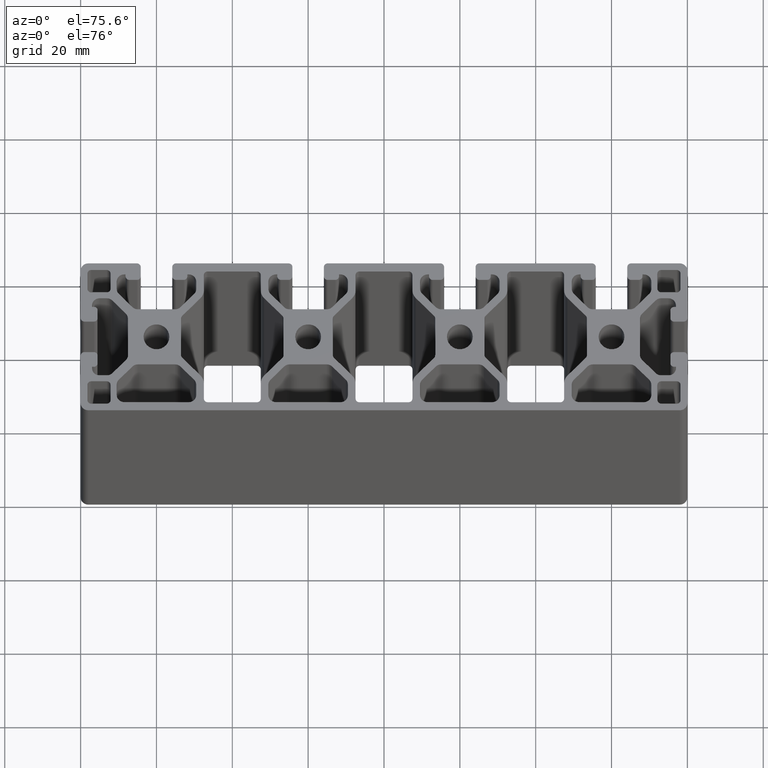
[diagram: clean part render]
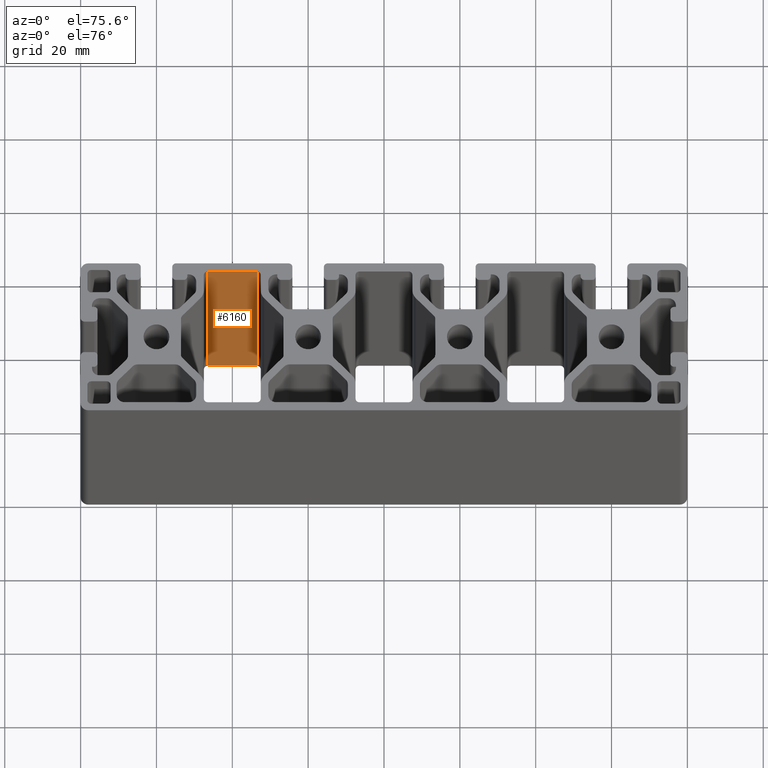
[diagram: same view with one face highlighted and labeled with its STEP entity id]
A machine part, auxiliary view. The second image highlights one B-rep face of the part: STEP entity #6160.
In plain terms, the highlighted planar face has unit normal (0, 1, 0).
Its self-contained STEP definition (entity closure, byte-faithful):
#50=PLANE('',#6488);
#218=FACE_OUTER_BOUND('',#540,.T.);
#540=EDGE_LOOP('',(#4101,#4102,#4103,#4104));
#898=LINE('',#9049,#1542);
#899=LINE('',#9053,#1543);
#900=LINE('',#9055,#1544);
#901=LINE('',#9056,#1545);
#1542=VECTOR('',#7134,100.);
#1543=VECTOR('',#7139,13.);
#1544=VECTOR('',#7140,100.);
#1545=VECTOR('',#7141,13.);
#2499=VERTEX_POINT('',#9046);
#2500=VERTEX_POINT('',#9048);
#2501=VERTEX_POINT('',#9052);
#2502=VERTEX_POINT('',#9054);
#3141=EDGE_CURVE('',#2499,#2500,#898,.T.);
#3143=EDGE_CURVE('',#2501,#2499,#899,.T.);
#3144=EDGE_CURVE('',#2501,#2502,#900,.T.);
#3145=EDGE_CURVE('',#2500,#2502,#901,.T.);
#4101=ORIENTED_EDGE('',*,*,#3143,.F.);
#4102=ORIENTED_EDGE('',*,*,#3144,.T.);
#4103=ORIENTED_EDGE('',*,*,#3145,.F.);
#4104=ORIENTED_EDGE('',*,*,#3141,.F.);
#6160=ADVANCED_FACE('',(#218),#50,.F.);
#6488=AXIS2_PLACEMENT_3D('',#9051,#7137,#7138);
#7134=DIRECTION('',(0.,0.,1.));
#7137=DIRECTION('center_axis',(0.,1.,0.));
#7138=DIRECTION('ref_axis',(-1.,0.,0.));
#7139=DIRECTION('',(-1.,0.,0.));
#7140=DIRECTION('',(0.,0.,1.));
#7141=DIRECTION('',(1.,0.,0.));
#9046=CARTESIAN_POINT('',(-46.5,17.8,0.));
#9048=CARTESIAN_POINT('',(-46.5,17.8,100.));
#9049=CARTESIAN_POINT('',(-46.5,17.8,0.));
#9051=CARTESIAN_POINT('Origin',(-33.5,17.8,0.));
#9052=CARTESIAN_POINT('',(-33.5,17.8,0.));
#9053=CARTESIAN_POINT('',(-16.7499999999976,17.8,0.));
#9054=CARTESIAN_POINT('',(-33.5,17.8,100.));
#9055=CARTESIAN_POINT('',(-33.5,17.8,0.));
#9056=CARTESIAN_POINT('',(-16.7499999999976,17.8,100.));